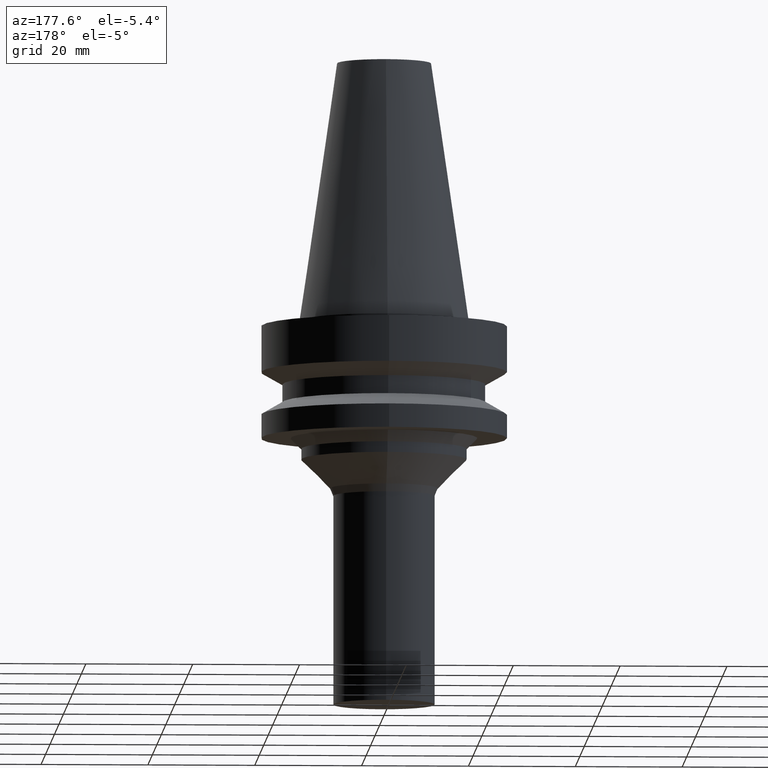
[diagram: clean part render]
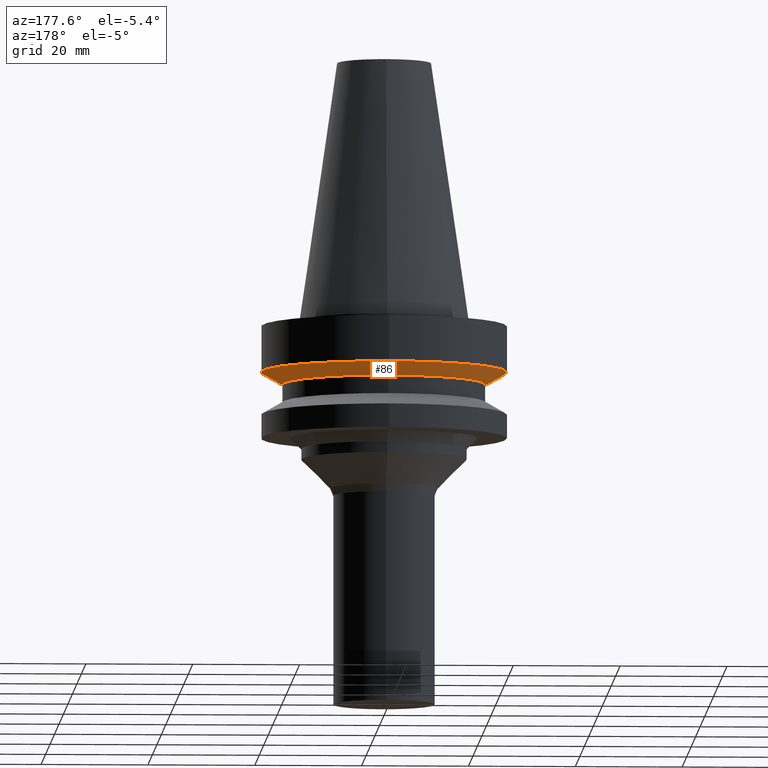
[diagram: same view with one face highlighted and labeled with its STEP entity id]
A machine part, auxiliary view. The second image highlights one B-rep face of the part: STEP entity #86.
In plain terms, the highlighted conical surface has half-angle 60 deg.
Its self-contained STEP definition (entity closure, byte-faithful):
#86=ADVANCED_FACE('',(#123,#124),#125,.T.);
#123=FACE_BOUND('',#169,.T.);
#124=FACE_BOUND('',#170,.T.);
#125=CONICAL_SURFACE('',#171,21.0,1.0471975511966);
#169=EDGE_LOOP('',(#237));
#170=EDGE_LOOP('',(#238));
#171=AXIS2_PLACEMENT_3D('',#239,#240,#241);
#237=ORIENTED_EDGE('',*,*,#273,.F.);
#238=ORIENTED_EDGE('',*,*,#272,.T.);
#239=CARTESIAN_POINT('',(6.58535479505723E-016,1.31707095901145E-015,-10.7547005383792));
#240=DIRECTION('',(-6.12323399573676E-017,-1.22464679914735E-016,1.0));
#241=DIRECTION('',(-1.23259516440783E-032,1.0,1.22464679914735E-016));
#272=EDGE_CURVE('',#297,#297,#298,.T.);
#273=EDGE_CURVE('',#299,#299,#300,.T.);
#297=VERTEX_POINT('',#327);
#298=CIRCLE('',#328,19.0);
#299=VERTEX_POINT('',#329);
#300=CIRCLE('',#330,23.0);
#327=CARTESIAN_POINT('',(7.29240495420716E-016,19.0,-11.9094010767585));
#328=AXIS2_PLACEMENT_3D('',#367,#368,#369);
#329=CARTESIAN_POINT('',(5.87830463590729E-016,23.0,-9.6));
#330=AXIS2_PLACEMENT_3D('',#370,#371,#372);
#367=CARTESIAN_POINT('',(7.29240495420716E-016,1.45848099084143E-015,-11.9094010767585));
#368=DIRECTION('',(-6.12323399573677E-017,-1.22464679914735E-016,1.0));
#369=DIRECTION('',(-1.23259516440783E-032,1.0,1.22464679914735E-016));
#370=CARTESIAN_POINT('',(5.8783046359073E-016,1.17566092718146E-015,-9.6));
#371=DIRECTION('',(-6.12323399573677E-017,-1.22464679914735E-016,1.0));
#372=DIRECTION('',(-1.23259516440783E-032,1.0,1.22464679914735E-016));